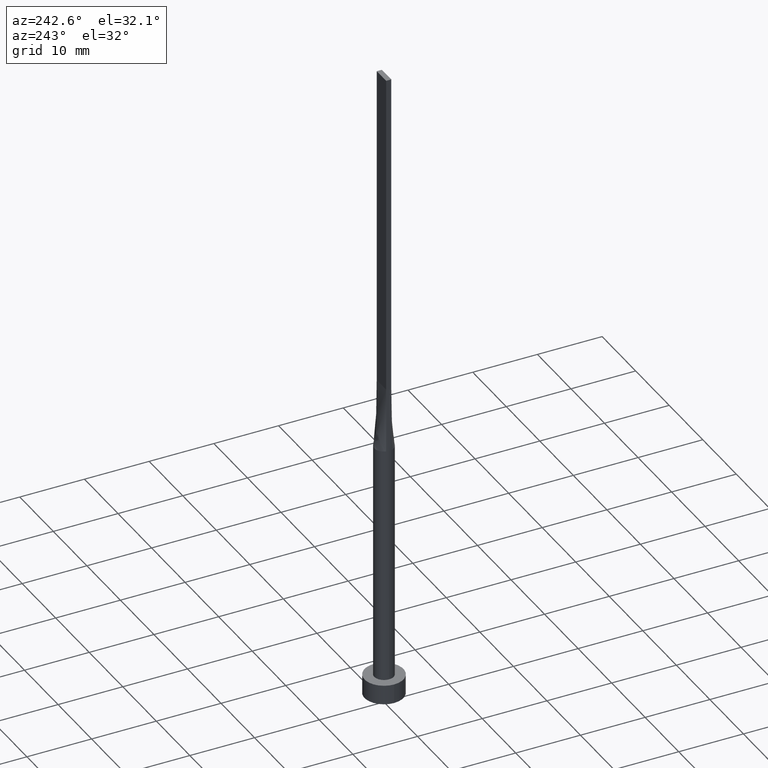
[diagram: clean part render]
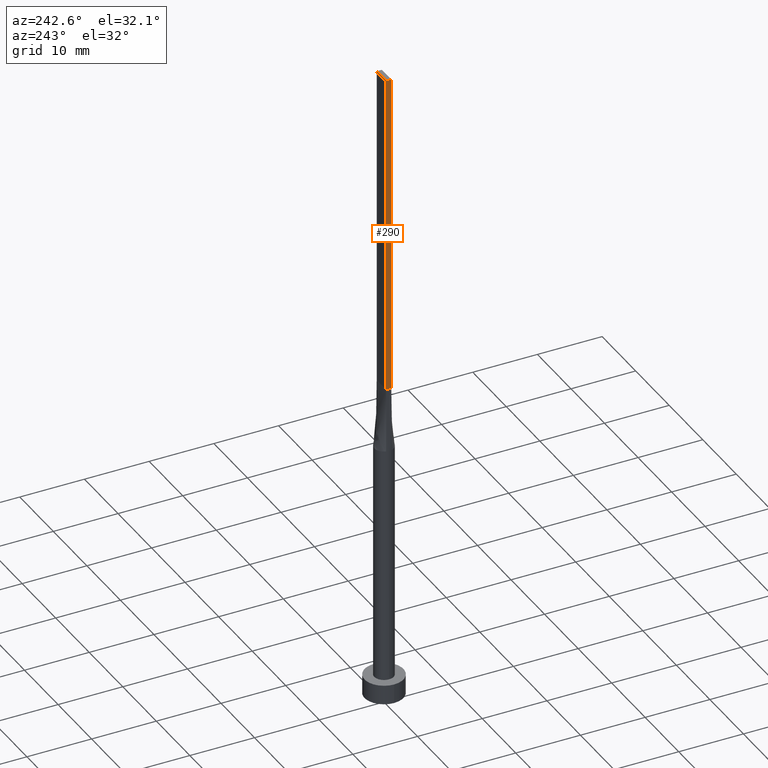
[diagram: same view with one face highlighted and labeled with its STEP entity id]
A machine part, auxiliary view. The second image highlights one B-rep face of the part: STEP entity #290.
In plain terms, the highlighted planar face has unit normal (1, -0, 0).
Its self-contained STEP definition (entity closure, byte-faithful):
#29 = VERTEX_POINT ( 'NONE', #167 ) ;
#89 = ORIENTED_EDGE ( 'NONE', *, *, #571, .F. ) ;
#123 = CARTESIAN_POINT ( 'NONE',  ( -1.399999999999999689, 0.4000000000000002442, 50.00000000000000000 ) ) ;
#134 = CARTESIAN_POINT ( 'NONE',  ( -1.399999999999999689, 0.4000000000000002442, 100.0000000000000000 ) ) ;
#139 = LINE ( 'NONE', #543, #170 ) ;
#144 = PLANE ( 'NONE',  #410 ) ;
#148 = EDGE_CURVE ( 'NONE', #29, #444, #279, .T. ) ;
#167 = CARTESIAN_POINT ( 'NONE',  ( -1.399999999999999689, 0.4000000000000002442, 100.0000000000000000 ) ) ;
#170 = VECTOR ( 'NONE', #238, 1000.000000000000000 ) ;
#189 = ORIENTED_EDGE ( 'NONE', *, *, #148, .F. ) ;
#238 = DIRECTION ( 'NONE',  ( -0.000000000000000000, -0.000000000000000000, -1.000000000000000000 ) ) ;
#268 = CARTESIAN_POINT ( 'NONE',  ( -1.399999999999999911, -0.3999999999999996336, 50.00000000000000000 ) ) ;
#271 = CARTESIAN_POINT ( 'NONE',  ( -1.399999999999999911, -0.3999999999999996336, 100.0000000000000000 ) ) ;
#277 = VECTOR ( 'NONE', #278, 1000.000000000000000 ) ;
#278 = DIRECTION ( 'NONE',  ( -0.000000000000000000, -0.000000000000000000, -1.000000000000000000 ) ) ;
#279 = LINE ( 'NONE', #457, #454 ) ;
#290 = ADVANCED_FACE ( 'NONE', ( #545 ), #144, .F. ) ;
#301 = EDGE_CURVE ( 'NONE', #443, #450, #374, .T. ) ;
#310 = EDGE_LOOP ( 'NONE', ( #351, #89, #189, #496 ) ) ;
#329 = DIRECTION ( 'NONE',  ( -2.710505431213761578E-16, -1.000000000000000000, 0.000000000000000000 ) ) ;
#351 = ORIENTED_EDGE ( 'NONE', *, *, #301, .T. ) ;
#374 = LINE ( 'NONE', #548, #485 ) ;
#410 = AXIS2_PLACEMENT_3D ( 'NONE', #501, #428, #509 ) ;
#421 = DIRECTION ( 'NONE',  ( -2.710505431213761578E-16, -1.000000000000000000, 0.000000000000000000 ) ) ;
#428 = DIRECTION ( 'NONE',  ( 1.000000000000000000, -2.710505431213761578E-16, 0.000000000000000000 ) ) ;
#443 = VERTEX_POINT ( 'NONE', #123 ) ;
#444 = VERTEX_POINT ( 'NONE', #271 ) ;
#450 = VERTEX_POINT ( 'NONE', #268 ) ;
#454 = VECTOR ( 'NONE', #421, 1000.000000000000000 ) ;
#457 = CARTESIAN_POINT ( 'NONE',  ( -1.399999999999999689, 0.4000000000000002442, 100.0000000000000000 ) ) ;
#485 = VECTOR ( 'NONE', #329, 1000.000000000000000 ) ;
#496 = ORIENTED_EDGE ( 'NONE', *, *, #523, .T. ) ;
#501 = CARTESIAN_POINT ( 'NONE',  ( -1.399999999999999689, 0.4000000000000002442, 100.0000000000000000 ) ) ;
#509 = DIRECTION ( 'NONE',  ( 2.710505431213761578E-16, 1.000000000000000000, 0.000000000000000000 ) ) ;
#523 = EDGE_CURVE ( 'NONE', #29, #443, #534, .T. ) ;
#534 = LINE ( 'NONE', #134, #277 ) ;
#543 = CARTESIAN_POINT ( 'NONE',  ( -1.399999999999999911, -0.3999999999999996336, 100.0000000000000000 ) ) ;
#545 = FACE_OUTER_BOUND ( 'NONE', #310, .T. ) ;
#548 = CARTESIAN_POINT ( 'NONE',  ( -1.399999999999999689, 0.4000000000000002442, 50.00000000000000000 ) ) ;
#571 = EDGE_CURVE ( 'NONE', #444, #450, #139, .T. ) ;